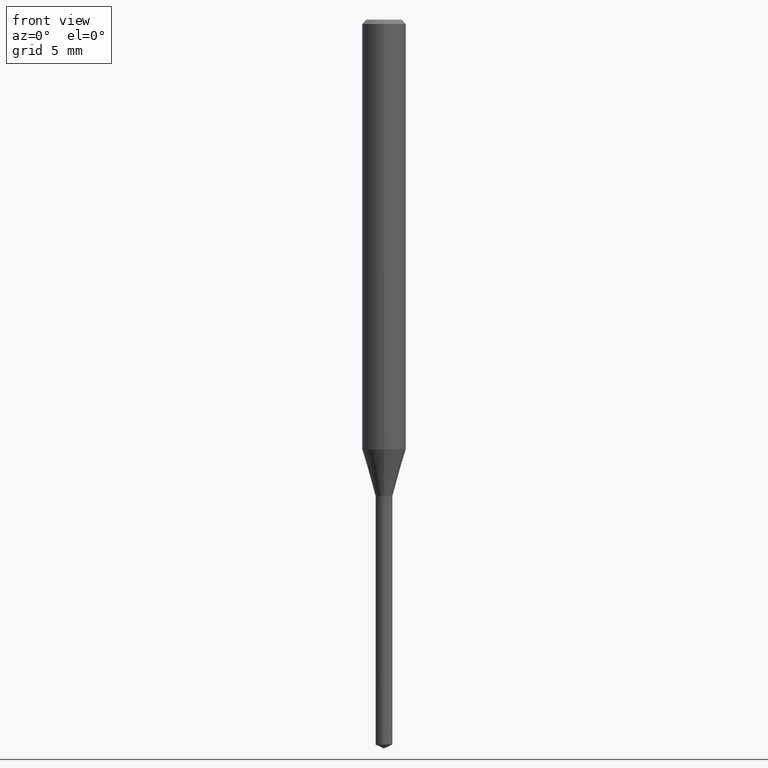
[diagram: clean part render]
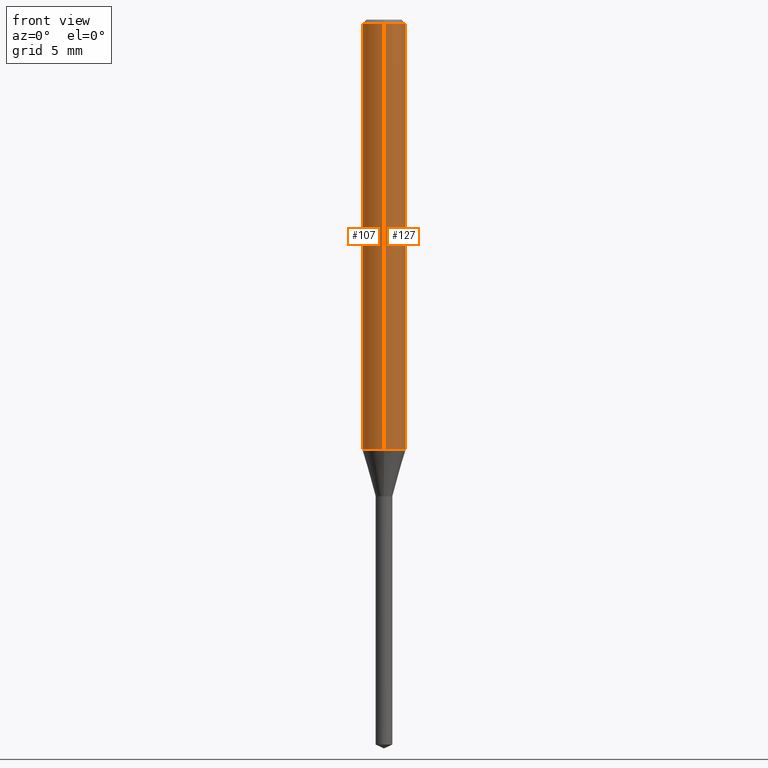
[diagram: same view with one multi-face feature highlighted, each face labeled with its STEP entity id]
A machine part, front view. The highlighted faces form ONE feature: a constant-radius fillet chain: 2 tangent blend faces with common blend radius 1.5 mm. The faces share edges in the B-rep.
Their STEP definitions:
[1] entity #127 (Cylinder):
#97=EDGE_CURVE('',#177,#183,#232,.T.);
#101=VERTEX_POINT('',#236);
#103=EDGE_CURVE('',#145,#101,#238,.T.);
#109=EDGE_CURVE('',#177,#101,#245,.T.);
#127=ADVANCED_FACE('',(#264),#265,.T.);
#129=EDGE_CURVE('',#183,#145,#267,.T.);
#145=VERTEX_POINT('',#285);
#177=VERTEX_POINT('',#323);
#183=VERTEX_POINT('',#329);
#232=LINE('',#380,#381);
#236=CARTESIAN_POINT('',(1.83690953073357E-016,-1.5,-0.300000000000001));
#238=LINE('',#387,#388);
#245=CIRCLE('',#397,1.5);
#264=FACE_OUTER_BOUND('',#422,.T.);
#265=CYLINDRICAL_SURFACE('',#423,1.5);
#267=CIRCLE('',#426,1.5);
#285=CARTESIAN_POINT('',(1.83690953073357E-016,-1.5,-29.474));
#323=CARTESIAN_POINT('',(0.0,1.5,-0.300000000000001));
#329=CARTESIAN_POINT('',(0.0,1.5,-29.474));
#380=CARTESIAN_POINT('',(-1.83690953073357E-016,1.5,-14.887));
#381=VECTOR('',#540,1.0);
#387=CARTESIAN_POINT('',(1.83690953073357E-016,-1.5,-14.887));
#388=VECTOR('',#542,1.0);
#397=AXIS2_PLACEMENT_3D('',#554,#555,#556);
#422=EDGE_LOOP('',(#572,#573,#574,#575));
#423=AXIS2_PLACEMENT_3D('',#576,#577,#578);
#426=AXIS2_PLACEMENT_3D('',#579,#580,#581);
#540=DIRECTION('',(0.0,0.0,-1.0));
#542=DIRECTION('',(-0.0,-0.0,1.0));
#554=CARTESIAN_POINT('',(0.0,0.0,-0.300000000000001));
#555=DIRECTION('',(0.0,0.0,-1.0));
#556=DIRECTION('',(0.0,1.0,0.0));
#572=ORIENTED_EDGE('',*,*,#97,.F.);
#573=ORIENTED_EDGE('',*,*,#109,.T.);
#574=ORIENTED_EDGE('',*,*,#103,.F.);
#575=ORIENTED_EDGE('',*,*,#129,.F.);
#576=CARTESIAN_POINT('',(0.0,0.0,-14.887));
#577=DIRECTION('',(-0.0,-0.0,1.0));
#578=DIRECTION('',(0.0,1.0,0.0));
#579=CARTESIAN_POINT('',(0.0,0.0,-29.474));
#580=DIRECTION('',(0.0,0.0,-1.0));
#581=DIRECTION('',(0.0,1.0,0.0));
[2] entity #107 (Cylinder):
#97=EDGE_CURVE('',#177,#183,#232,.T.);
#101=VERTEX_POINT('',#236);
#103=EDGE_CURVE('',#145,#101,#238,.T.);
#107=ADVANCED_FACE('',(#242),#243,.T.);
#131=EDGE_CURVE('',#101,#177,#269,.T.);
#145=VERTEX_POINT('',#285);
#177=VERTEX_POINT('',#323);
#183=VERTEX_POINT('',#329);
#199=EDGE_CURVE('',#145,#183,#347,.T.);
#232=LINE('',#380,#381);
#236=CARTESIAN_POINT('',(1.83690953073357E-016,-1.5,-0.300000000000001));
#238=LINE('',#387,#388);
#242=FACE_OUTER_BOUND('',#393,.T.);
#243=CYLINDRICAL_SURFACE('',#394,1.5);
#269=CIRCLE('',#429,1.5);
#285=CARTESIAN_POINT('',(1.83690953073357E-016,-1.5,-29.474));
#323=CARTESIAN_POINT('',(0.0,1.5,-0.300000000000001));
#329=CARTESIAN_POINT('',(0.0,1.5,-29.474));
#347=CIRCLE('',#526,1.5);
#380=CARTESIAN_POINT('',(-1.83690953073357E-016,1.5,-14.887));
#381=VECTOR('',#540,1.0);
#387=CARTESIAN_POINT('',(1.83690953073357E-016,-1.5,-14.887));
#388=VECTOR('',#542,1.0);
#393=EDGE_LOOP('',(#547,#548,#549,#550));
#394=AXIS2_PLACEMENT_3D('',#551,#552,#553);
#429=AXIS2_PLACEMENT_3D('',#582,#583,#584);
#526=AXIS2_PLACEMENT_3D('',#685,#686,#687);
#540=DIRECTION('',(0.0,0.0,-1.0));
#542=DIRECTION('',(-0.0,-0.0,1.0));
#547=ORIENTED_EDGE('',*,*,#97,.T.);
#548=ORIENTED_EDGE('',*,*,#199,.F.);
#549=ORIENTED_EDGE('',*,*,#103,.T.);
#550=ORIENTED_EDGE('',*,*,#131,.T.);
#551=CARTESIAN_POINT('',(0.0,0.0,-14.887));
#552=DIRECTION('',(-0.0,-0.0,1.0));
#553=DIRECTION('',(0.0,1.0,0.0));
#582=CARTESIAN_POINT('',(0.0,0.0,-0.300000000000001));
#583=DIRECTION('',(0.0,0.0,-1.0));
#584=DIRECTION('',(0.0,1.0,0.0));
#685=CARTESIAN_POINT('',(0.0,0.0,-29.474));
#686=DIRECTION('',(0.0,0.0,-1.0));
#687=DIRECTION('',(0.0,1.0,0.0));